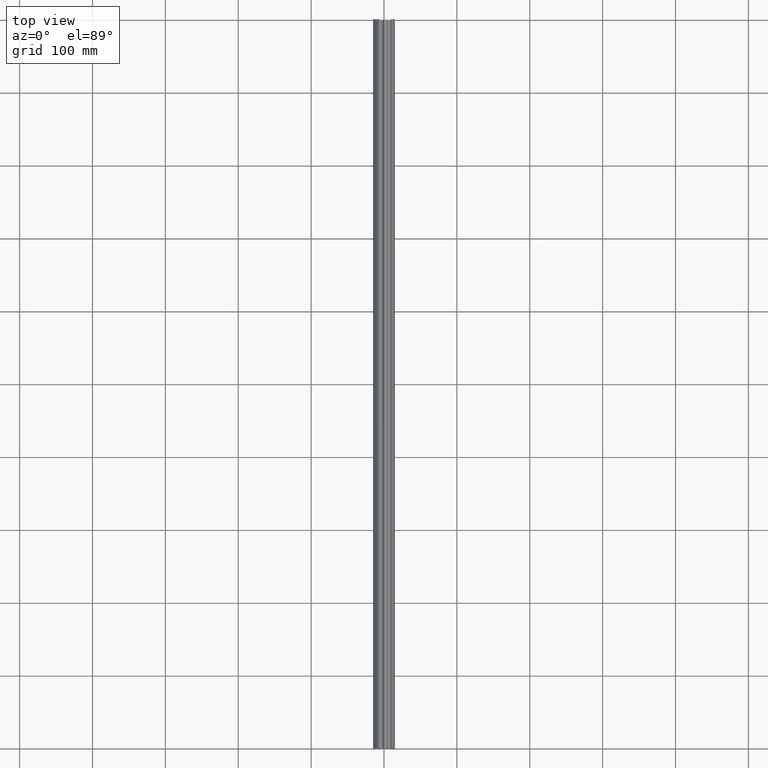
[diagram: clean part render]
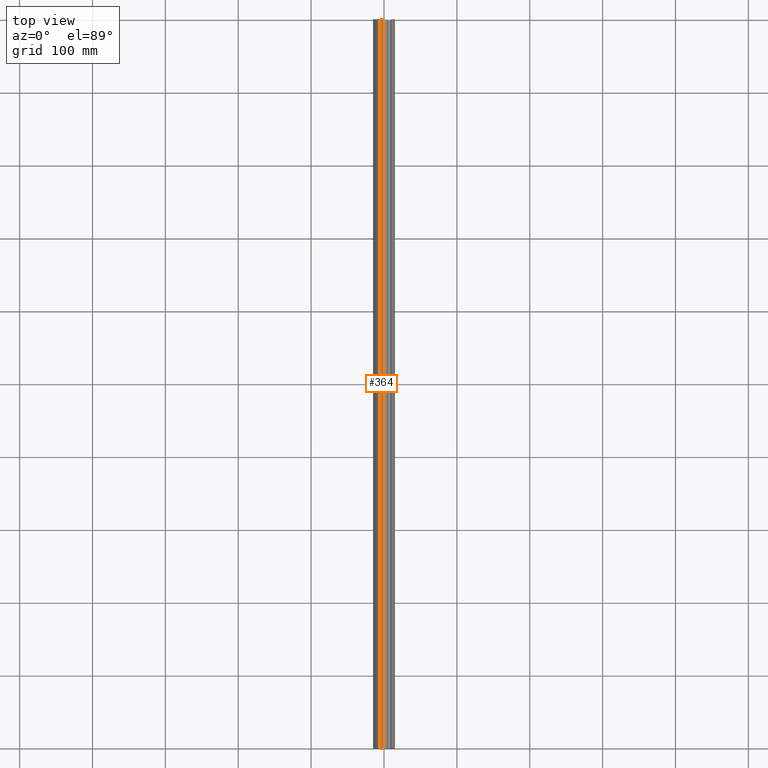
[diagram: same view with one face highlighted and labeled with its STEP entity id]
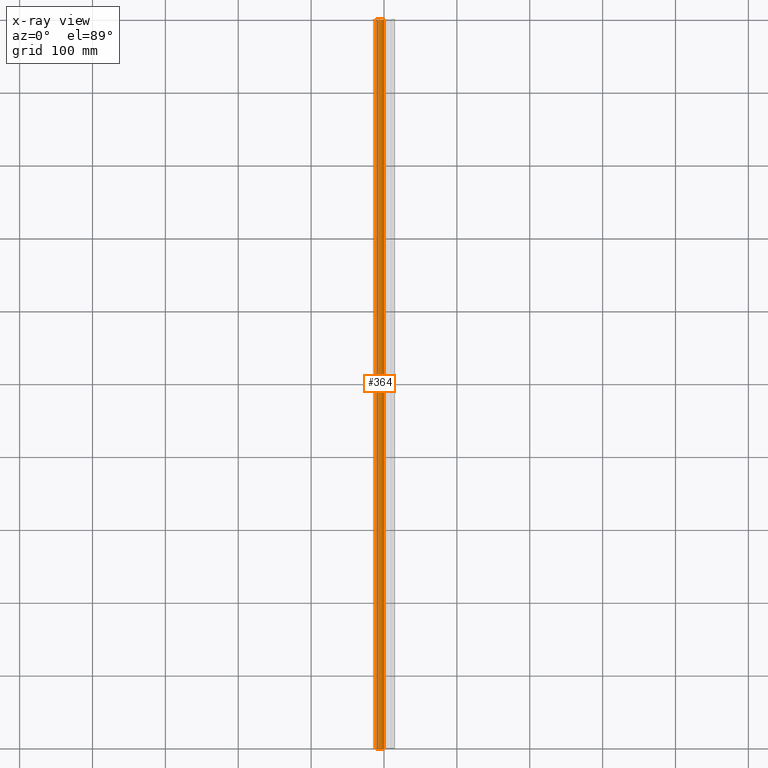
[diagram: x-ray of the same camera — body ghosted, the highlighted face saturated]
A machine part, top view. The second image highlights one B-rep face of the part: STEP entity #364.
The next image is the same camera in x-ray: the body ghosted, the highlighted face saturated — about 0% of this face is hidden behind the body in this view.
In plain terms, the highlighted cylindrical surface (edge-blend (fillet) strip) has radius 5 mm, axis along (0, 1, 0).
Its self-contained STEP definition (entity closure, byte-faithful):
#27=FACE_OUTER_BOUND('',#47,.T.);
#47=EDGE_LOOP('',(#248,#249,#250,#251));
#69=LINE('',#575,#101);
#70=LINE('',#578,#102);
#101=VECTOR('',#458,10.);
#102=VECTOR('',#461,10.);
#134=CIRCLE('',#407,5.);
#135=CIRCLE('',#408,5.);
#156=VERTEX_POINT('',#571);
#157=VERTEX_POINT('',#572);
#158=VERTEX_POINT('',#574);
#159=VERTEX_POINT('',#576);
#193=EDGE_CURVE('',#156,#157,#134,.T.);
#194=EDGE_CURVE('',#157,#158,#69,.T.);
#195=EDGE_CURVE('',#159,#158,#135,.T.);
#196=EDGE_CURVE('',#156,#159,#70,.T.);
#248=ORIENTED_EDGE('',*,*,#193,.T.);
#249=ORIENTED_EDGE('',*,*,#194,.T.);
#250=ORIENTED_EDGE('',*,*,#195,.F.);
#251=ORIENTED_EDGE('',*,*,#196,.F.);
#353=CYLINDRICAL_SURFACE('',#406,5.);
#364=ADVANCED_FACE('',(#27),#353,.F.);
#406=AXIS2_PLACEMENT_3D('',#570,#454,#455);
#407=AXIS2_PLACEMENT_3D('',#573,#456,#457);
#408=AXIS2_PLACEMENT_3D('',#577,#459,#460);
#454=DIRECTION('center_axis',(0.,1.,0.));
#455=DIRECTION('ref_axis',(-1.,0.,4.44089209850063E-16));
#456=DIRECTION('center_axis',(0.,-1.,0.));
#457=DIRECTION('ref_axis',(-1.,0.,4.44089209850063E-16));
#458=DIRECTION('',(0.,1.,0.));
#459=DIRECTION('center_axis',(0.,-1.,0.));
#460=DIRECTION('ref_axis',(-1.,0.,4.44089209850063E-16));
#461=DIRECTION('',(0.,1.,0.));
#570=CARTESIAN_POINT('Origin',(-5.5,0.,19.));
#571=CARTESIAN_POINT('',(-7.72222222222222,0.,23.4790320823881));
#572=CARTESIAN_POINT('',(-0.499999999999999,0.,19.));
#573=CARTESIAN_POINT('Origin',(-5.5,0.,19.));
#574=CARTESIAN_POINT('',(-0.499999999999999,1000.,19.));
#575=CARTESIAN_POINT('',(-0.499999999999999,0.,19.));
#576=CARTESIAN_POINT('',(-7.72222222222222,1000.,23.4790320823881));
#577=CARTESIAN_POINT('Origin',(-5.5,1000.,19.));
#578=CARTESIAN_POINT('',(-7.72222222222222,0.,23.4790320823881));